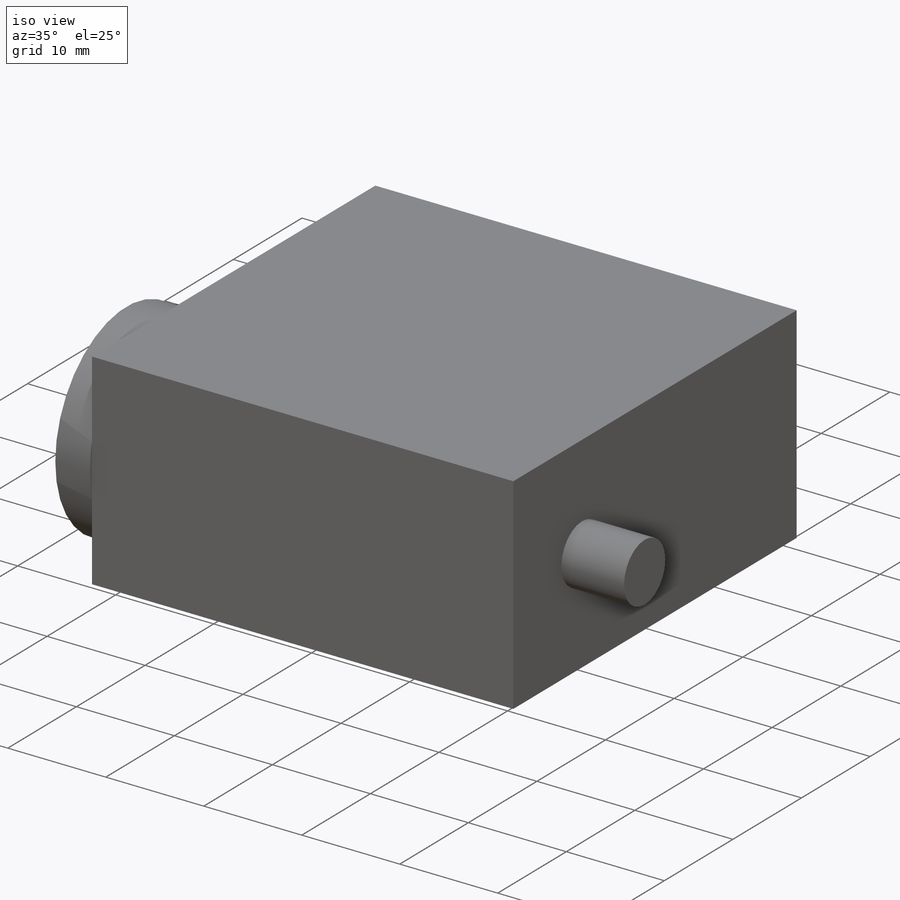
[diagram: iso view]
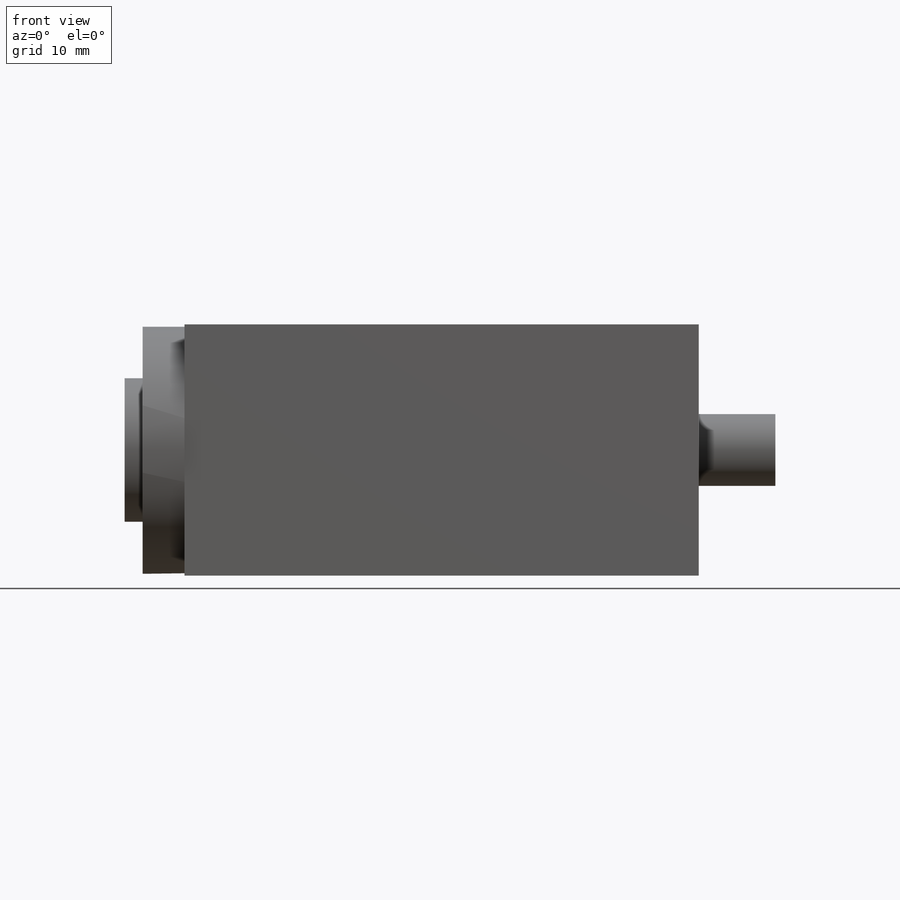
[diagram: front view]
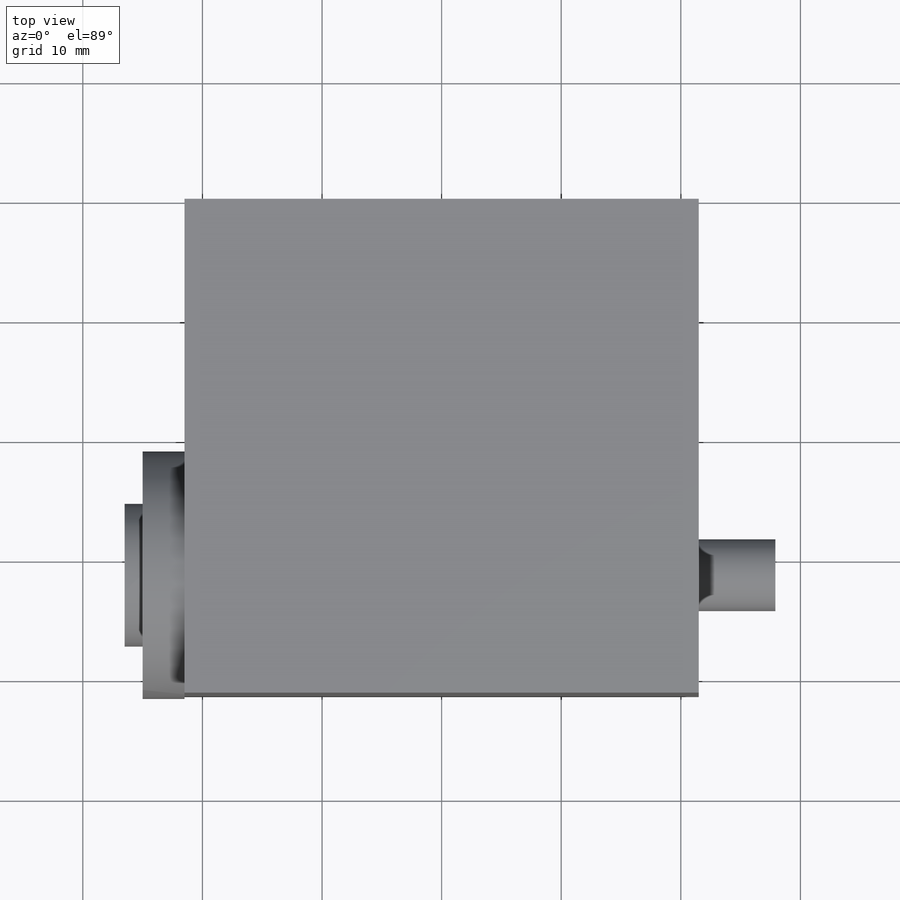
[diagram: top view]
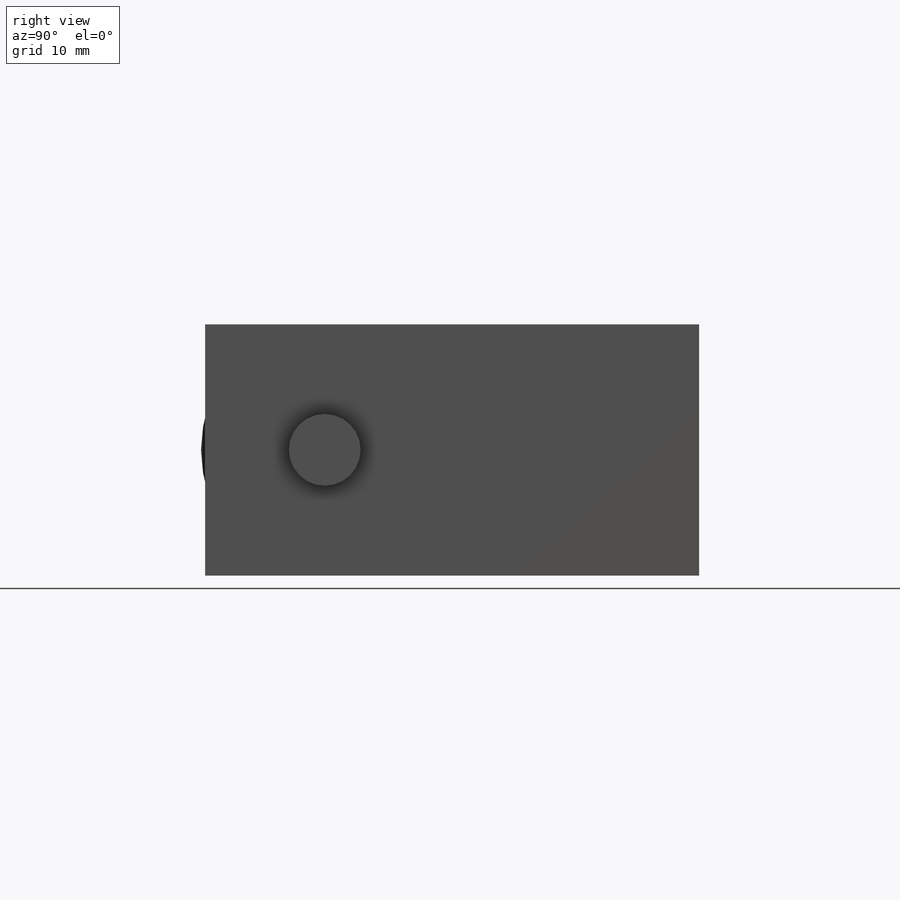
[diagram: right view]
SOLIDWORKS PART (.sldprt)
format: sldprt  version: not decoded by parser v0  size: 197,632 bytes
history: native  units: mm
features: sketch x5, extrude x4, plane x3, material x1, cut_extrude x1 (+10 scaffold rows collapsed)
feature tree (24):
  scaffold x10  (default folders/planes/origin — collapsed)
  material  "材质 <未指定>"
  plane  "前视基准面"
  plane  "上视基准面"
  plane  "右视基准面"
  sketch  "草图1"  dims[c1.D1=21.0mm c1.D2=43.0mm c2.D1=43.0mm c2.D2=21.0mm]
  extrude  "凸台-拉伸1"  Depth=41.3mm
  sketch  "草图2"  dims[D1=6.0mm D2=10.0mm D3=31.3mm]
  extrude  "凸台-拉伸2"  Depth=6.4mm
  sketch  "草图3"  dims[D1=20.7mm]
  extrude  "凸台-拉伸3"  Depth=46.5mm
  sketch  "草图4"  dims[D1=12.0mm]
  extrude  "凸台-拉伸4"  Depth=1.5mm
  sketch  "草图5"  dims[D1=1.5mm D2=7.45mm D3=4.0]
  cut_extrude  "切除-拉伸1"  Depth=4mm
decode coverage: 10 of 10 modeling features carry decoded parameters
note: suppression state not decoded; provenance and decode notes live in map.json
